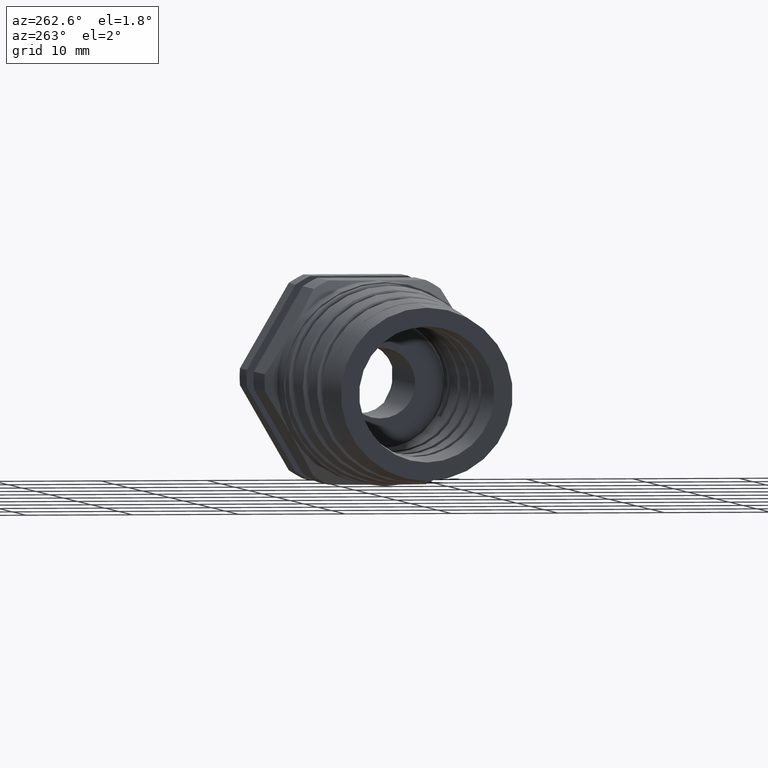
[diagram: clean part render]
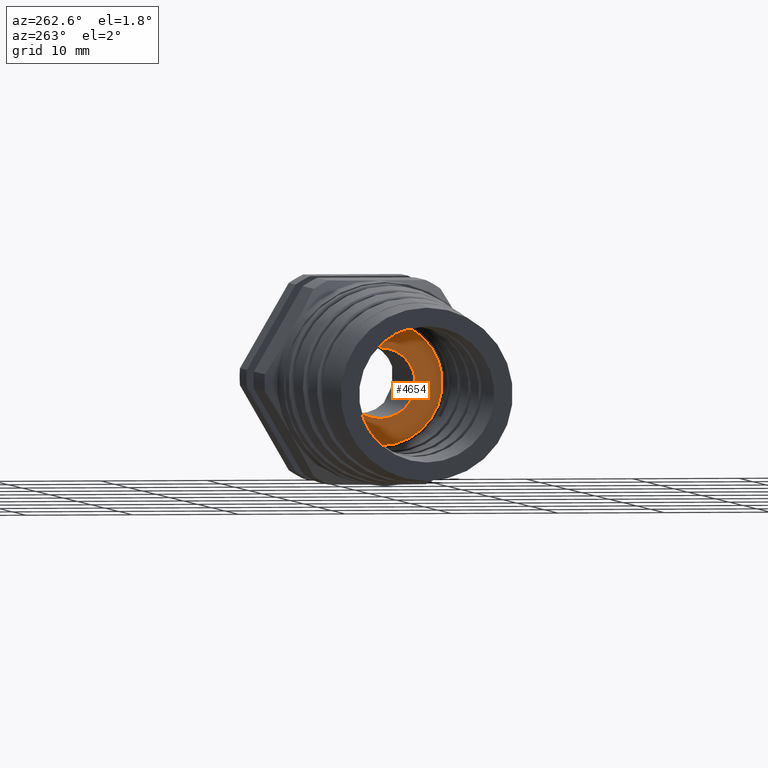
[diagram: same view with one face highlighted and labeled with its STEP entity id]
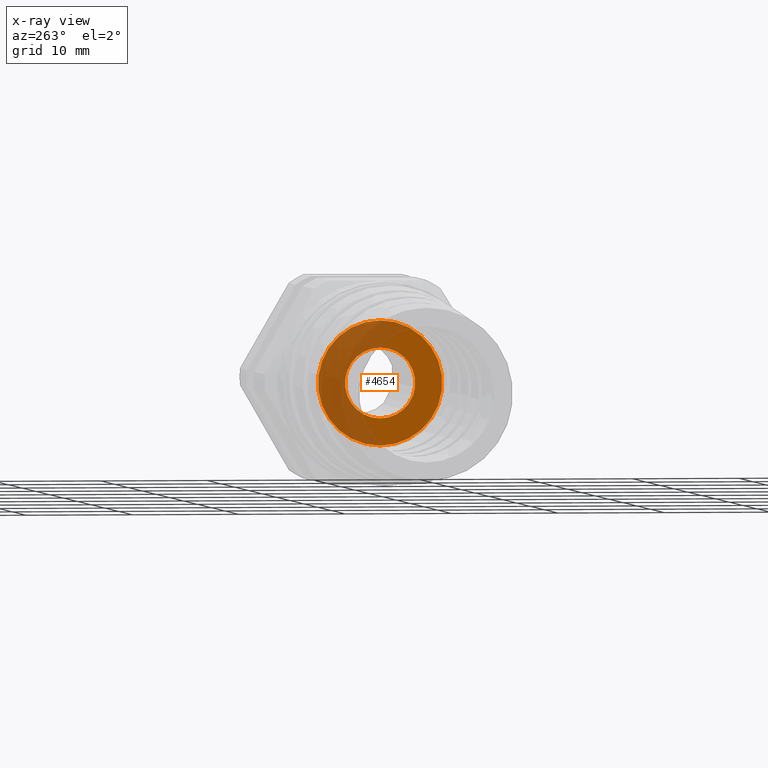
[diagram: x-ray of the same camera — body ghosted, the highlighted face saturated]
A machine part, auxiliary view. The second image highlights one B-rep face of the part: STEP entity #4654.
The next image is the same camera in x-ray: the body ghosted, the highlighted face saturated — about 51% of this face is hidden behind the body in this view.
In plain terms, the highlighted planar face has unit normal (-1, 0, 0).
Its self-contained STEP definition (entity closure, byte-faithful):
#1021 = VERTEX_POINT ( 'NONE', #7262 ) ;
#1024 = EDGE_CURVE ( 'NONE', #1025, #1026, #7261, .T. ) ;
#1025 = VERTEX_POINT ( 'NONE', #7256 ) ;
#1026 = VERTEX_POINT ( 'NONE', #7255 ) ;
#1033 = EDGE_CURVE ( 'NONE', #1047, #1021, #7248, .T. ) ;
#1047 = VERTEX_POINT ( 'NONE', #7276 ) ;
#4169 = DIRECTION ( 'NONE',  ( 0.0000000000000000000, 0.0000000000000000000, -1.000000000000000000 ) ) ;
#4170 = DIRECTION ( 'NONE',  ( 1.000000000000000000, 0.0000000000000000000, 0.0000000000000000000 ) ) ;
#4171 = CARTESIAN_POINT ( 'NONE',  ( -1.109999999999999900, 0.0000000000000000000, 0.0000000000000000000 ) ) ;
#4172 = AXIS2_PLACEMENT_3D ( 'NONE', #4171, #4170, #4169 ) ;
#4173 = CIRCLE ( 'NONE', #4172, 0.1300000000000000000 ) ;
#4174 = DIRECTION ( 'NONE',  ( 0.0000000000000000000, 0.0000000000000000000, 1.000000000000000000 ) ) ;
#4175 = DIRECTION ( 'NONE',  ( -1.000000000000000000, 0.0000000000000000000, 0.0000000000000000000 ) ) ;
#4176 = CARTESIAN_POINT ( 'NONE',  ( -1.109999999999999900, 0.2299999999999999800, 0.0000000000000000000 ) ) ;
#4177 = AXIS2_PLACEMENT_3D ( 'NONE', #4176, #4175, #4174 ) ;
#4178 = PLANE ( 'NONE',  #4177 ) ;
#4179 = FACE_OUTER_BOUND ( 'NONE', #4658, .T. ) ;
#4180 = FACE_BOUND ( 'NONE', #4653, .T. ) ;
#4181 = DIRECTION ( 'NONE',  ( 0.0000000000000000000, 0.0000000000000000000, -1.000000000000000000 ) ) ;
#4182 = DIRECTION ( 'NONE',  ( 1.000000000000000000, 0.0000000000000000000, 0.0000000000000000000 ) ) ;
#4183 = AXIS2_PLACEMENT_3D ( 'NONE', #4189, #4182, #4181 ) ;
#4184 = CIRCLE ( 'NONE', #4183, 0.2299999999999999800 ) ;
#4189 = CARTESIAN_POINT ( 'NONE',  ( -1.109999999999999900, 0.0000000000000000000, 0.0000000000000000000 ) ) ;
#4650 = EDGE_CURVE ( 'NONE', #1026, #1025, #4184, .T. ) ;
#4653 = EDGE_LOOP ( 'NONE', ( #4655, #4657 ) ) ;
#4654 = ADVANCED_FACE ( 'NONE', ( #4180, #4179 ), #4178, .T. ) ;
#4655 = ORIENTED_EDGE ( 'NONE', *, *, #4656, .T. ) ;
#4656 = EDGE_CURVE ( 'NONE', #1021, #1047, #4173, .T. ) ;
#4657 = ORIENTED_EDGE ( 'NONE', *, *, #1033, .T. ) ;
#4658 = EDGE_LOOP ( 'NONE', ( #4659, #4660 ) ) ;
#4659 = ORIENTED_EDGE ( 'NONE', *, *, #1024, .F. ) ;
#4660 = ORIENTED_EDGE ( 'NONE', *, *, #4650, .F. ) ;
#7244 = DIRECTION ( 'NONE',  ( 0.0000000000000000000, 0.0000000000000000000, -1.000000000000000000 ) ) ;
#7245 = DIRECTION ( 'NONE',  ( 1.000000000000000000, 0.0000000000000000000, 0.0000000000000000000 ) ) ;
#7246 = CARTESIAN_POINT ( 'NONE',  ( -1.109999999999999900, 0.0000000000000000000, 0.0000000000000000000 ) ) ;
#7247 = AXIS2_PLACEMENT_3D ( 'NONE', #7246, #7245, #7244 ) ;
#7248 = CIRCLE ( 'NONE', #7247, 0.1300000000000000000 ) ;
#7255 = CARTESIAN_POINT ( 'NONE',  ( -1.109999999999999900, 2.877919977996279800E-017, 0.2299999999999999800 ) ) ;
#7256 = CARTESIAN_POINT ( 'NONE',  ( -1.109999999999999900, 0.0000000000000000000, -0.2299999999999999800 ) ) ;
#7257 = DIRECTION ( 'NONE',  ( 0.0000000000000000000, 0.0000000000000000000, -1.000000000000000000 ) ) ;
#7258 = DIRECTION ( 'NONE',  ( 1.000000000000000000, 0.0000000000000000000, 0.0000000000000000000 ) ) ;
#7259 = CARTESIAN_POINT ( 'NONE',  ( -1.109999999999999900, 0.0000000000000000000, 0.0000000000000000000 ) ) ;
#7260 = AXIS2_PLACEMENT_3D ( 'NONE', #7259, #7258, #7257 ) ;
#7261 = CIRCLE ( 'NONE', #7260, 0.2299999999999999800 ) ;
#7262 = CARTESIAN_POINT ( 'NONE',  ( -1.109999999999999900, 0.0000000000000000000, -0.1300000000000000000 ) ) ;
#7276 = CARTESIAN_POINT ( 'NONE',  ( -1.109999999999999900, 1.592040838891559300E-017, 0.1300000000000000000 ) ) ;